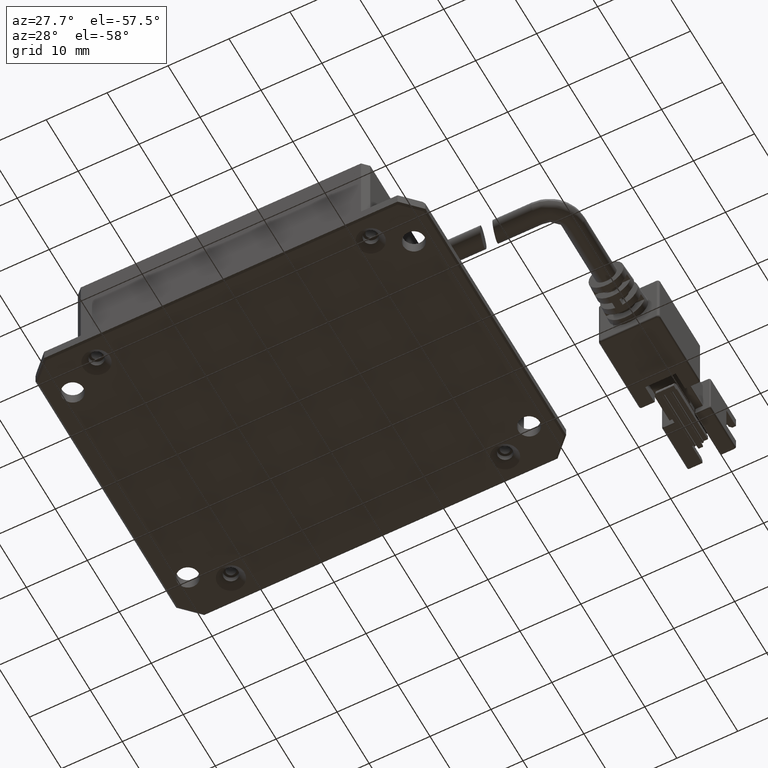
[diagram: clean part render]
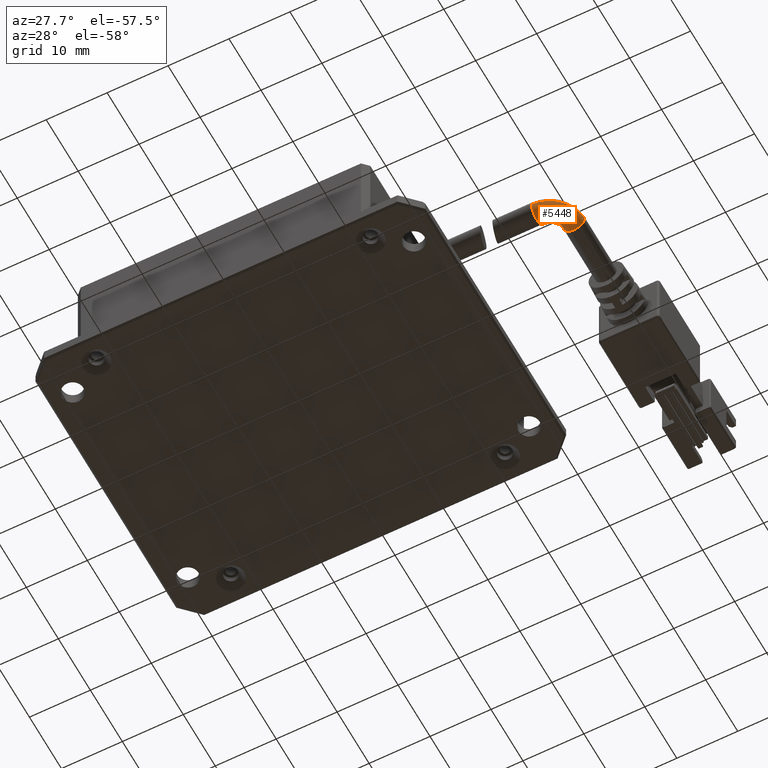
[diagram: same view with one face highlighted and labeled with its STEP entity id]
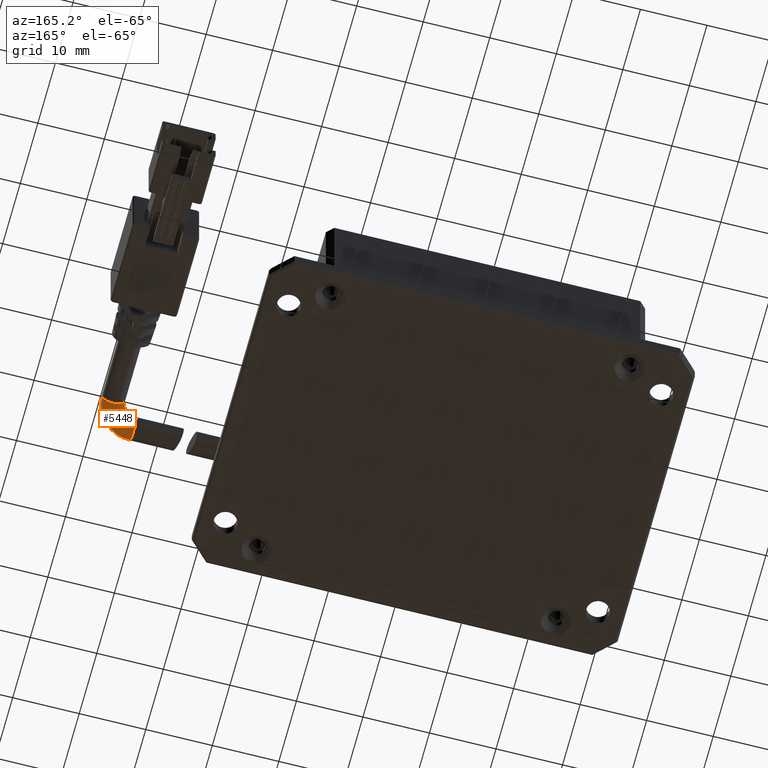
[diagram: same view with one face highlighted and labeled with its STEP entity id]
A machine part, auxiliary view. The second image highlights one B-rep face of the part: STEP entity #5448.
A second angle (auxiliary view) of the same face is appended — the face is thin or edge-on in the first view.
In plain terms, the highlighted face is a freeform B-spline surface patch.
Its self-contained STEP definition (entity closure, byte-faithful):
#65 = CARTESIAN_POINT ( 'NONE',  ( 44.41118481493926100, -5.959049255440966400, 4.999999999983690400 ) ) ;
#135 = CARTESIAN_POINT ( 'NONE',  ( 43.09316533027873000, -9.459049255440964600, 4.999999999983692200 ) ) ;
#614 = DIRECTION ( 'NONE',  ( 0.0000000000000000000, -1.000000000000000000, 0.0000000000000000000 ) ) ;
#860 = AXIS2_PLACEMENT_3D ( 'NONE', #10649, #1173, #12222 ) ;
#870 = DIRECTION ( 'NONE',  ( 0.0000000000000000000, -1.000000000000000000, 0.0000000000000000000 ) ) ;
#1173 = DIRECTION ( 'NONE',  ( -3.081487911019577400E-033, 1.000000000000000000, -2.672764710092188000E-049 ) ) ;
#1334 = EDGE_CURVE ( 'NONE', #17870, #7186, #4512, .T. ) ;
#1381 = DIRECTION ( 'NONE',  ( -1.000000000000000000, 0.0000000000000000000, 0.0000000000000000000 ) ) ;
#1662 = CARTESIAN_POINT ( 'NONE',  ( 45.34316533027873700, -3.709049255440967300, 1.499999999983692800 ) ) ;
#3201 = CARTESIAN_POINT ( 'NONE',  ( 45.34316533027873000, -3.709049255440967300, 4.999999999983692200 ) ) ;
#3240 = CARTESIAN_POINT ( 'NONE',  ( 43.09316533027873700, -7.709049255440968200, 3.249999999983691700 ) ) ;
#3260 = CARTESIAN_POINT ( 'NONE',  ( 44.41118481493925400, -5.959049255440965500, 1.499999999983693000 ) ) ;
#3537 = CARTESIAN_POINT ( 'NONE',  ( 43.09316533027873700, -5.959049255440968200, 4.999999999983692200 ) ) ;
#3905 = EDGE_LOOP ( 'NONE', ( #5591, #15527, #7143, #19519, #9391 ) ) ;
#4512 = CIRCLE ( 'NONE', #11679, 2.249999999999995100 ) ;
#4875 = CARTESIAN_POINT ( 'NONE',  ( 48.84316533027873700, -3.709049255440967300, 1.499999999983692800 ) ) ;
#4926 =( BOUNDED_SURFACE ( )  B_SPLINE_SURFACE ( 3, 3, ( 
 ( #3201, #9583, #65, #11169 ),
 ( #1662, #12727, #3260, #14316 ),
 ( #4875, #15919, #6455, #17527 ),
 ( #8035, #19094, #9653, #135 ) ),
 .UNSPECIFIED., .F., .F., .F. ) 
 B_SPLINE_SURFACE_WITH_KNOTS ( ( 4, 4 ),
 ( 4, 4 ),
 ( 0.0000000000000000000, 1.000000000000000000 ),
 ( 0.0000000000000000000, 1.000000000000000000 ),
 .UNSPECIFIED. ) 
 GEOMETRIC_REPRESENTATION_ITEM ( )  RATIONAL_B_SPLINE_SURFACE ( (
 ( 1.000000000000000000, 0.8047378541243649400, 0.8047378541243649400, 1.000000000000000000),
 ( 0.3333333333333333700, 0.2682459513747883500, 0.2682459513747883500, 0.3333333333333333700),
 ( 0.3333333333333333700, 0.2682459513747883500, 0.2682459513747883500, 0.3333333333333333700),
 ( 1.000000000000000000, 0.8047378541243649400, 0.8047378541243649400, 1.000000000000000000) ) ) 
 REPRESENTATION_ITEM ( '' )  SURFACE ( )  );
#4984 = CARTESIAN_POINT ( 'NONE',  ( 43.09316533027873700, -3.709049255440967800, 4.999999999983692200 ) ) ;
#4998 = CARTESIAN_POINT ( 'NONE',  ( 43.09316533027873700, -9.459049255440968200, 4.999999999983692200 ) ) ;
#5448 = ADVANCED_FACE ( 'NONE', ( #8028 ), #4926, .T. ) ;
#5591 = ORIENTED_EDGE ( 'NONE', *, *, #1334, .F. ) ;
#5628 = VERTEX_POINT ( 'NONE', #11920 ) ;
#5978 = CIRCLE ( 'NONE', #10739, 1.749999999999999800 ) ;
#6455 = CARTESIAN_POINT ( 'NONE',  ( 46.46143734663343100, -9.459049255440968200, 1.499999999983693000 ) ) ;
#6565 = DIRECTION ( 'NONE',  ( -1.000000000000000000, 0.0000000000000000000, 0.0000000000000000000 ) ) ;
#7143 = ORIENTED_EDGE ( 'NONE', *, *, #19351, .T. ) ;
#7186 = VERTEX_POINT ( 'NONE', #3537 ) ;
#7960 = VERTEX_POINT ( 'NONE', #4998 ) ;
#8028 = FACE_OUTER_BOUND ( 'NONE', #3905, .T. ) ;
#8035 = CARTESIAN_POINT ( 'NONE',  ( 48.84316533027873700, -3.709049255440967300, 4.999999999983692200 ) ) ;
#8685 = EDGE_CURVE ( 'NONE', #5628, #17870, #15272, .T. ) ;
#9391 = ORIENTED_EDGE ( 'NONE', *, *, #17507, .T. ) ;
#9583 = CARTESIAN_POINT ( 'NONE',  ( 45.34316533027871500, -5.027068740101500000, 4.999999999983690400 ) ) ;
#9653 = CARTESIAN_POINT ( 'NONE',  ( 46.46143734663343100, -9.459049255440968200, 4.999999999983690400 ) ) ;
#9814 = CIRCLE ( 'NONE', #20083, 5.749999999999998200 ) ;
#10003 = CIRCLE ( 'NONE', #15985, 1.749999999999999800 ) ;
#10097 = DIRECTION ( 'NONE',  ( 1.000000000000000000, 1.836970198721029700E-016, -2.588449845256445000E-031 ) ) ;
#10343 = DIRECTION ( 'NONE',  ( 1.000000000000000000, 1.836970198721029700E-016, -2.588449845256445000E-031 ) ) ;
#10649 = CARTESIAN_POINT ( 'NONE',  ( 47.09316533027874400, -3.709049255440967800, 4.999999999983692200 ) ) ;
#10739 = AXIS2_PLACEMENT_3D ( 'NONE', #19567, #10097, #614 ) ;
#10869 = DIRECTION ( 'NONE',  ( -2.588449845256445000E-031, -2.672764710092196000E-049, -1.000000000000000000 ) ) ;
#11137 = CARTESIAN_POINT ( 'NONE',  ( 45.34316533027873700, -3.709049255440967800, 4.999999999983692200 ) ) ;
#11169 = CARTESIAN_POINT ( 'NONE',  ( 43.09316533027873000, -5.959049255440961100, 4.999999999983692200 ) ) ;
#11679 = AXIS2_PLACEMENT_3D ( 'NONE', #20344, #10869, #1381 ) ;
#11920 = CARTESIAN_POINT ( 'NONE',  ( 48.84316533027874400, -3.709049255440967800, 4.999999999983692200 ) ) ;
#12222 = DIRECTION ( 'NONE',  ( 1.000000000000000000, 0.0000000000000000000, 0.0000000000000000000 ) ) ;
#12727 = CARTESIAN_POINT ( 'NONE',  ( 45.34316533027873700, -5.027068740101500000, 1.499999999983693000 ) ) ;
#14316 = CARTESIAN_POINT ( 'NONE',  ( 43.09316533027873700, -5.959049255440961100, 1.499999999983692800 ) ) ;
#14759 = VERTEX_POINT ( 'NONE', #3240 ) ;
#15023 = EDGE_CURVE ( 'NONE', #7960, #14759, #10003, .T. ) ;
#15272 = CIRCLE ( 'NONE', #860, 1.750000000000001600 ) ;
#15527 = ORIENTED_EDGE ( 'NONE', *, *, #8685, .F. ) ;
#15919 = CARTESIAN_POINT ( 'NONE',  ( 48.84316533027873700, -7.077321271795670800, 1.499999999983693000 ) ) ;
#15985 = AXIS2_PLACEMENT_3D ( 'NONE', #19821, #10343, #870 ) ;
#16036 = DIRECTION ( 'NONE',  ( -2.588449845256445000E-031, -2.672764710092196000E-049, -1.000000000000000000 ) ) ;
#17507 = EDGE_CURVE ( 'NONE', #14759, #7186, #5978, .T. ) ;
#17527 = CARTESIAN_POINT ( 'NONE',  ( 43.09316533027873700, -9.459049255440964600, 1.499999999983692800 ) ) ;
#17870 = VERTEX_POINT ( 'NONE', #11137 ) ;
#19094 = CARTESIAN_POINT ( 'NONE',  ( 48.84316533027873700, -7.077321271795669900, 4.999999999983690400 ) ) ;
#19351 = EDGE_CURVE ( 'NONE', #5628, #7960, #9814, .T. ) ;
#19519 = ORIENTED_EDGE ( 'NONE', *, *, #15023, .T. ) ;
#19567 = CARTESIAN_POINT ( 'NONE',  ( 43.09316533027873700, -7.709049255440968200, 4.999999999983692200 ) ) ;
#19821 = CARTESIAN_POINT ( 'NONE',  ( 43.09316533027873700, -7.709049255440968200, 4.999999999983692200 ) ) ;
#20083 = AXIS2_PLACEMENT_3D ( 'NONE', #4984, #16036, #6565 ) ;
#20344 = CARTESIAN_POINT ( 'NONE',  ( 43.09316533027873700, -3.709049255440967800, 4.999999999983692200 ) ) ;